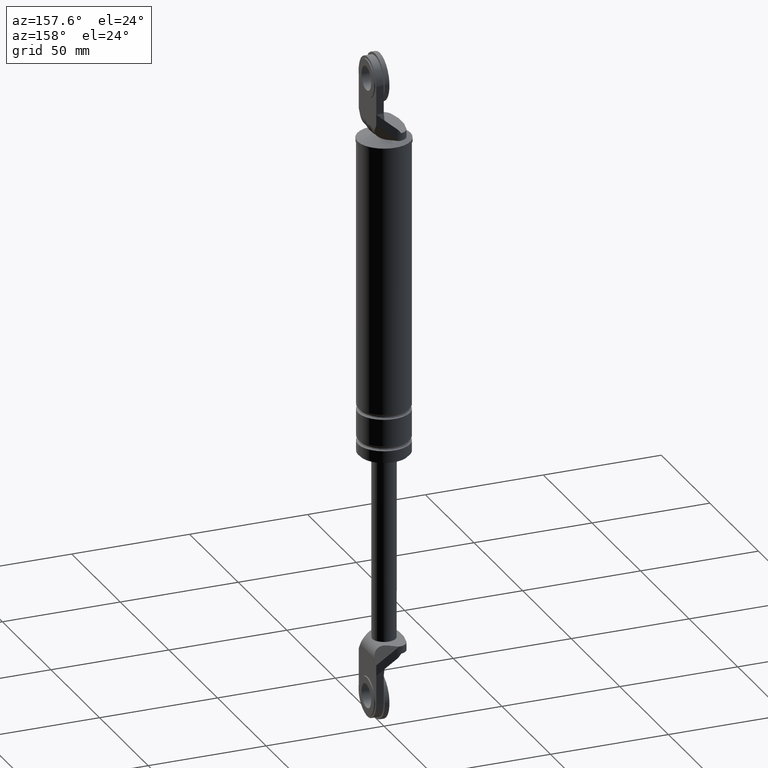
[diagram: clean part render]
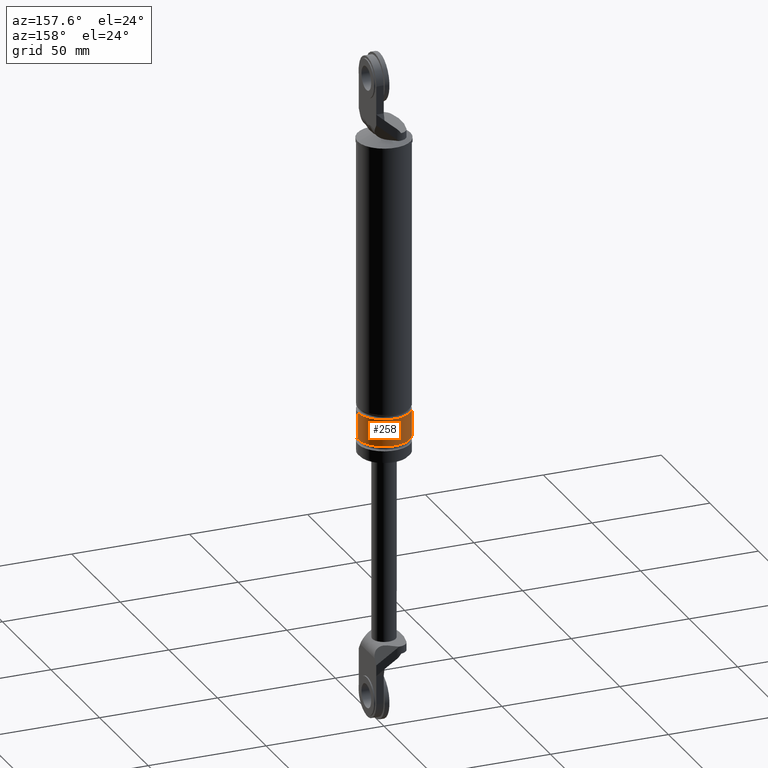
[diagram: same view with one face highlighted and labeled with its STEP entity id]
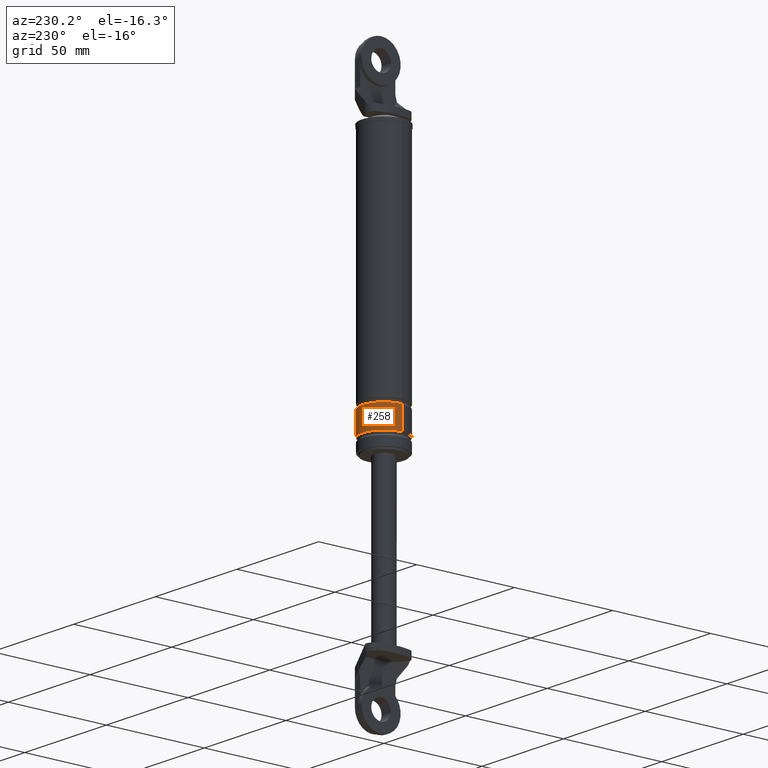
[diagram: same view with one face highlighted and labeled with its STEP entity id]
A machine part, auxiliary view. The second image highlights one B-rep face of the part: STEP entity #258.
A second angle (auxiliary view) of the same face is appended — the face is thin or edge-on in the first view.
In plain terms, the highlighted cylindrical surface (edge-blend (fillet) strip) has radius 11 mm, axis along (0, 0, 1).
Its self-contained STEP definition (entity closure, byte-faithful):
#258=ADVANCED_FACE('',(#837),#836,.T.);
#836=CYLINDRICAL_SURFACE('',#1586,1.10000000000E+001);
#837=FACE_OUTER_BOUND('',#1587,.T.);
#1583=CARTESIAN_POINT('',(0.00000000000E+000,3.58204186421E-014,0.00000000000E+000));
#1584=DIRECTION('',(-0.00000000000E+000,-0.00000000000E+000,1.00000000000E+000));
#1585=DIRECTION('',(1.00000000000E+000,0.00000000000E+000,0.00000000000E+000));
#1586=AXIS2_PLACEMENT_3D('',#1583,#1584,#1585);
#1587=EDGE_LOOP('',(#2030,#2031,#2032,#2033));
#2030=ORIENTED_EDGE('',*,*,#2289,.T.);
#2031=ORIENTED_EDGE('',*,*,#2307,.F.);
#2032=ORIENTED_EDGE('',*,*,#2303,.F.);
#2033=ORIENTED_EDGE('',*,*,#2308,.T.);
#2289=EDGE_CURVE('',#3111,#3104,#3112,.T.);
#2303=EDGE_CURVE('',#3198,#3199,#3200,.T.);
#2307=EDGE_CURVE('',#3199,#3104,#3224,.T.);
#2308=EDGE_CURVE('',#3198,#3111,#3230,.T.);
#3104=VERTEX_POINT('',#4161);
#3111=VERTEX_POINT('',#4167);
#3112=CIRCLE('',#4171,1.10000000000E+001);
#3198=VERTEX_POINT('',#4211);
#3199=VERTEX_POINT('',#4212);
#3200=CIRCLE('',#4216,1.10000000000E+001);
#3224=(BOUNDED_CURVE() B_SPLINE_CURVE(1,(#4231,#4232),.UNSPECIFIED.,.F.,.F.) B_SPLINE_CURVE_WITH_KNOTS((2,2),(8.33333343261E-002,9.16666667006E-001),.UNSPECIFIED.) CURVE() GEOMETRIC_REPRESENTATION_ITEM() RATIONAL_B_SPLINE_CURVE((1.00000000000E+000,1.00000000000E+000)) REPRESENTATION_ITEM('') );
#3230=(BOUNDED_CURVE() B_SPLINE_CURVE(1,(#4233,#4234),.UNSPECIFIED.,.F.,.F.) B_SPLINE_CURVE_WITH_KNOTS((2,2),(8.33333333333E-002,9.16666666667E-001),.UNSPECIFIED.) CURVE() GEOMETRIC_REPRESENTATION_ITEM() RATIONAL_B_SPLINE_CURVE((7.50000000000E-001,7.50000000000E-001)) REPRESENTATION_ITEM('') );
#4161=CARTESIAN_POINT('',(1.10000000000E+001,3.61192557345E-014,-3.00000150000E+001));
#4167=CARTESIAN_POINT('',(-1.10000000000E+001,3.58204186421E-014,-3.00000150000E+001));
#4168=CARTESIAN_POINT('',(0.00000000000E+000,3.58204186421E-014,-3.00000150000E+001));
#4169=DIRECTION('',(-0.00000000000E+000,0.00000000000E+000,-1.00000000000E+000));
#4170=DIRECTION('',(-1.00000000000E+000,-1.22460635382E-016,0.00000000000E+000));
#4171=AXIS2_PLACEMENT_3D('',#4168,#4169,#4170);
#4211=CARTESIAN_POINT('',(-1.10000000000E+001,3.58204186421E-014,-4.15000150000E+001));
#4212=CARTESIAN_POINT('',(1.10000000000E+001,3.61192557345E-014,-4.15000150000E+001));
#4213=CARTESIAN_POINT('',(0.00000000000E+000,3.58204186421E-014,-4.15000150000E+001));
#4214=DIRECTION('',(-0.00000000000E+000,0.00000000000E+000,-1.00000000000E+000));
#4215=DIRECTION('',(-1.00000000000E+000,-1.22460635382E-016,0.00000000000E+000));
#4216=AXIS2_PLACEMENT_3D('',#4213,#4214,#4215);
#4231=CARTESIAN_POINT('',(1.10000000000E+001,3.58204186421E-014,-4.15000149863E+001));
#4232=CARTESIAN_POINT('',(1.10000000000E+001,3.58204186421E-014,-3.00000149953E+001));
#4233=CARTESIAN_POINT('',(-1.10000000000E+001,3.55271367880E-014,-4.15000150000E+001));
#4234=CARTESIAN_POINT('',(-1.10000000000E+001,3.55271367880E-014,-3.00000150000E+001));